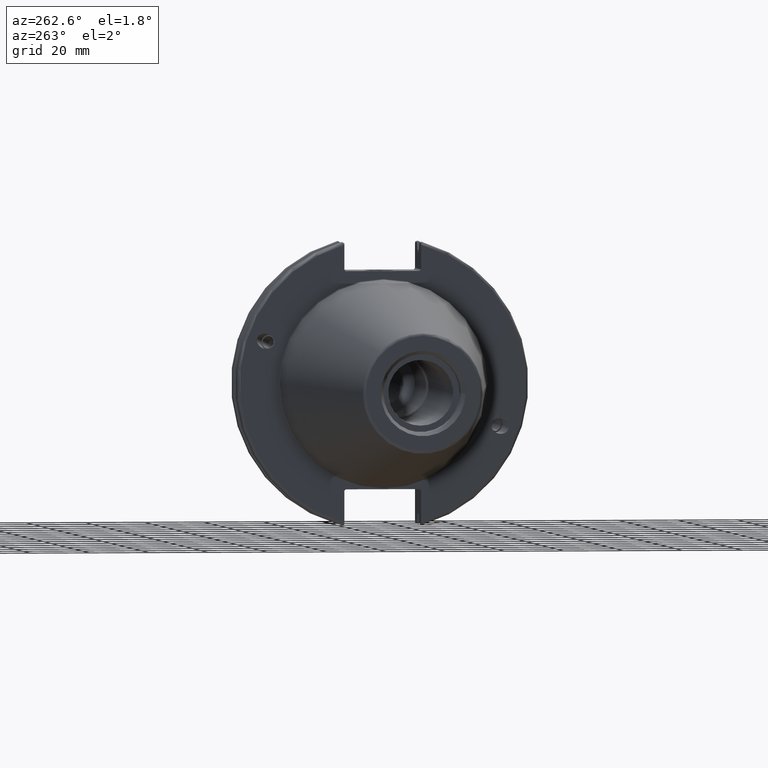
[diagram: clean part render]
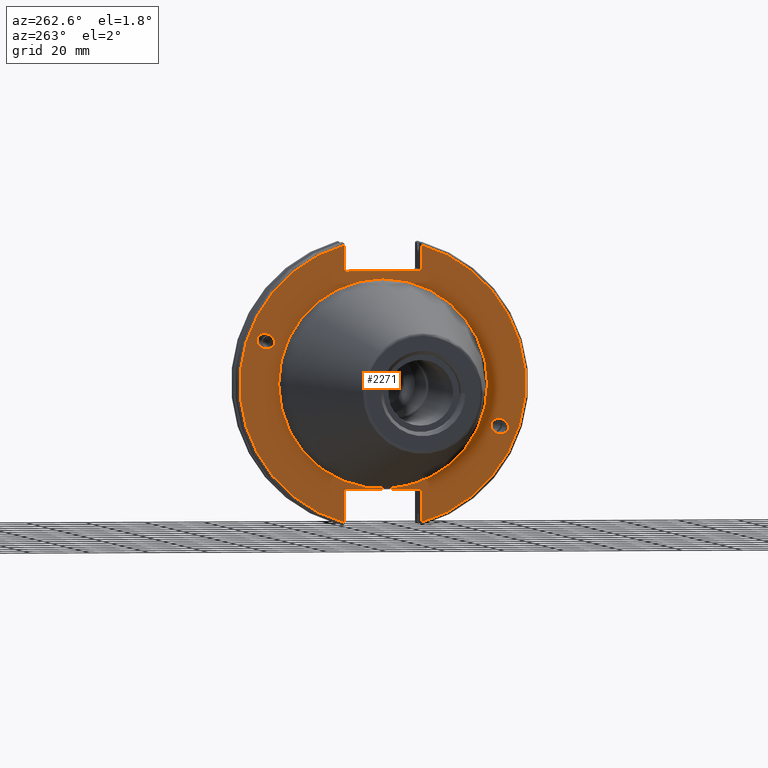
[diagram: same view with one face highlighted and labeled with its STEP entity id]
A machine part, auxiliary view. The second image highlights one B-rep face of the part: STEP entity #2271.
In plain terms, the highlighted planar face has unit normal (-1, 0, 0).
Its self-contained STEP definition (entity closure, byte-faithful):
#31=ELLIPSE('',#2514,3.05193647190364,2.5);
#32=ELLIPSE('',#2553,3.05193647190364,2.5);
#44=PLANE('',#2566);
#104=FACE_BOUND('',#362,.T.);
#105=FACE_BOUND('',#363,.T.);
#106=FACE_BOUND('',#364,.T.);
#236=FACE_OUTER_BOUND('',#361,.T.);
#361=EDGE_LOOP('',(#1895,#1896,#1897,#1898,#1899,#1900,#1901,#1902,#1903,
#1904,#1905,#1906));
#362=EDGE_LOOP('',(#1907));
#363=EDGE_LOOP('',(#1908));
#364=EDGE_LOOP('',(#1909,#1910));
#462=LINE('',#4252,#569);
#463=LINE('',#4254,#570);
#464=LINE('',#4256,#571);
#465=LINE('',#4258,#572);
#466=LINE('',#4260,#573);
#467=LINE('',#4264,#574);
#468=LINE('',#4266,#575);
#469=LINE('',#4268,#576);
#470=LINE('',#4270,#577);
#471=LINE('',#4271,#578);
#569=VECTOR('',#3161,10.);
#570=VECTOR('',#3162,10.);
#571=VECTOR('',#3163,10.);
#572=VECTOR('',#3164,10.);
#573=VECTOR('',#3165,10.);
#574=VECTOR('',#3168,10.);
#575=VECTOR('',#3169,10.);
#576=VECTOR('',#3170,10.);
#577=VECTOR('',#3171,10.);
#578=VECTOR('',#3172,10.);
#784=CIRCLE('',#2562,35.125);
#785=CIRCLE('',#2563,35.125);
#788=CIRCLE('',#2567,48.2125);
#789=CIRCLE('',#2568,48.2125);
#959=VERTEX_POINT('',#3953);
#1002=VERTEX_POINT('',#4222);
#1008=VERTEX_POINT('',#4239);
#1009=VERTEX_POINT('',#4241);
#1011=VERTEX_POINT('',#4248);
#1012=VERTEX_POINT('',#4249);
#1013=VERTEX_POINT('',#4251);
#1014=VERTEX_POINT('',#4253);
#1015=VERTEX_POINT('',#4255);
#1016=VERTEX_POINT('',#4257);
#1017=VERTEX_POINT('',#4259);
#1018=VERTEX_POINT('',#4261);
#1019=VERTEX_POINT('',#4263);
#1020=VERTEX_POINT('',#4265);
#1021=VERTEX_POINT('',#4267);
#1022=VERTEX_POINT('',#4269);
#1261=EDGE_CURVE('',#959,#959,#31,.T.);
#1317=EDGE_CURVE('',#1002,#1002,#32,.T.);
#1325=EDGE_CURVE('',#1008,#1009,#784,.T.);
#1326=EDGE_CURVE('',#1009,#1008,#785,.T.);
#1329=EDGE_CURVE('',#1011,#1012,#788,.T.);
#1330=EDGE_CURVE('',#1011,#1013,#462,.T.);
#1331=EDGE_CURVE('',#1014,#1013,#463,.T.);
#1332=EDGE_CURVE('',#1014,#1015,#464,.T.);
#1333=EDGE_CURVE('',#1016,#1015,#465,.T.);
#1334=EDGE_CURVE('',#1016,#1017,#466,.T.);
#1335=EDGE_CURVE('',#1018,#1017,#789,.T.);
#1336=EDGE_CURVE('',#1018,#1019,#467,.T.);
#1337=EDGE_CURVE('',#1020,#1019,#468,.T.);
#1338=EDGE_CURVE('',#1020,#1021,#469,.T.);
#1339=EDGE_CURVE('',#1022,#1021,#470,.T.);
#1340=EDGE_CURVE('',#1022,#1012,#471,.T.);
#1895=ORIENTED_EDGE('',*,*,#1329,.F.);
#1896=ORIENTED_EDGE('',*,*,#1330,.T.);
#1897=ORIENTED_EDGE('',*,*,#1331,.F.);
#1898=ORIENTED_EDGE('',*,*,#1332,.T.);
#1899=ORIENTED_EDGE('',*,*,#1333,.F.);
#1900=ORIENTED_EDGE('',*,*,#1334,.T.);
#1901=ORIENTED_EDGE('',*,*,#1335,.F.);
#1902=ORIENTED_EDGE('',*,*,#1336,.T.);
#1903=ORIENTED_EDGE('',*,*,#1337,.F.);
#1904=ORIENTED_EDGE('',*,*,#1338,.T.);
#1905=ORIENTED_EDGE('',*,*,#1339,.F.);
#1906=ORIENTED_EDGE('',*,*,#1340,.T.);
#1907=ORIENTED_EDGE('',*,*,#1261,.T.);
#1908=ORIENTED_EDGE('',*,*,#1317,.T.);
#1909=ORIENTED_EDGE('',*,*,#1326,.F.);
#1910=ORIENTED_EDGE('',*,*,#1325,.F.);
#2271=ADVANCED_FACE('',(#236,#104,#105,#106),#44,.T.);
#2514=AXIS2_PLACEMENT_3D('',#3955,#3035,#3036);
#2553=AXIS2_PLACEMENT_3D('',#4224,#3129,#3130);
#2562=AXIS2_PLACEMENT_3D('',#4242,#3149,#3150);
#2563=AXIS2_PLACEMENT_3D('',#4243,#3151,#3152);
#2566=AXIS2_PLACEMENT_3D('',#4247,#3157,#3158);
#2567=AXIS2_PLACEMENT_3D('',#4250,#3159,#3160);
#2568=AXIS2_PLACEMENT_3D('',#4262,#3166,#3167);
#3035=DIRECTION('center_axis',(1.,0.,0.));
#3036=DIRECTION('ref_axis',(0.,-0.939692620785907,-0.342020143325671));
#3129=DIRECTION('center_axis',(1.,0.,0.));
#3130=DIRECTION('ref_axis',(0.,0.939692620785907,0.342020143325672));
#3149=DIRECTION('center_axis',(-1.,0.,0.));
#3150=DIRECTION('ref_axis',(0.,-1.,1.83697019872103E-16));
#3151=DIRECTION('center_axis',(-1.,0.,0.));
#3152=DIRECTION('ref_axis',(0.,-1.,1.83697019872103E-16));
#3157=DIRECTION('center_axis',(-1.,0.,0.));
#3158=DIRECTION('ref_axis',(0.,0.,1.));
#3159=DIRECTION('center_axis',(1.,0.,0.));
#3160=DIRECTION('ref_axis',(0.,-1.,1.60812264967664E-16));
#3161=DIRECTION('',(0.,0.,-1.));
#3162=DIRECTION('',(0.,-0.707106781186549,0.707106781186546));
#3163=DIRECTION('',(0.,1.,0.));
#3164=DIRECTION('',(0.,-0.707106781186549,-0.707106781186546));
#3165=DIRECTION('',(0.,0.,1.));
#3166=DIRECTION('center_axis',(1.,0.,0.));
#3167=DIRECTION('ref_axis',(0.,1.,-6.12323399573677E-17));
#3168=DIRECTION('',(0.,0.,1.));
#3169=DIRECTION('',(0.,0.707106781186549,-0.707106781186546));
#3170=DIRECTION('',(0.,-1.,0.));
#3171=DIRECTION('',(0.,0.707106781186549,0.707106781186546));
#3172=DIRECTION('',(0.,0.,-1.));
#3953=CARTESIAN_POINT('',(3.175,-36.5992078912529,-13.3210222701368));
#3955=CARTESIAN_POINT('Origin',(3.175,-39.4670900730082,-14.3648460196781));
#4222=CARTESIAN_POINT('',(3.175,36.5992078912529,13.3210222701368));
#4224=CARTESIAN_POINT('Origin',(3.175,39.4670900730082,14.3648460196781));
#4239=CARTESIAN_POINT('',(3.175,-4.30157188200508E-15,35.125));
#4241=CARTESIAN_POINT('',(3.175,35.125,-1.07539297050127E-14));
#4242=CARTESIAN_POINT('Origin',(3.175,0.,0.));
#4243=CARTESIAN_POINT('Origin',(3.175,0.,0.));
#4247=CARTESIAN_POINT('Origin',(3.175,49.2125,0.));
#4248=CARTESIAN_POINT('',(3.175,-12.95,46.4407434937254));
#4249=CARTESIAN_POINT('',(3.175,-12.95,-46.4407434937254));
#4250=CARTESIAN_POINT('Origin',(3.175,0.,0.));
#4251=CARTESIAN_POINT('',(3.175,-12.95,38.219));
#4252=CARTESIAN_POINT('',(3.175,-12.95,18.8595));
#4253=CARTESIAN_POINT('',(3.175,-12.45,37.719));
#4254=CARTESIAN_POINT('',(3.175,12.2703750000001,12.998625));
#4255=CARTESIAN_POINT('',(3.175,12.45,37.719));
#4256=CARTESIAN_POINT('',(3.175,24.60625,37.719));
#4257=CARTESIAN_POINT('',(3.175,12.95,38.219));
#4258=CARTESIAN_POINT('',(3.175,12.335875,37.604875));
#4259=CARTESIAN_POINT('',(3.175,12.95,46.4407434937254));
#4260=CARTESIAN_POINT('',(3.175,12.95,18.8595));
#4261=CARTESIAN_POINT('',(3.175,12.95,-46.4407434937254));
#4262=CARTESIAN_POINT('Origin',(3.175,0.,0.));
#4263=CARTESIAN_POINT('',(3.175,12.95,-35.806));
#4264=CARTESIAN_POINT('',(3.175,12.95,-17.653));
#4265=CARTESIAN_POINT('',(3.175,12.45,-35.306));
#4266=CARTESIAN_POINT('',(3.175,12.939125,-35.795125));
#4267=CARTESIAN_POINT('',(3.175,-12.45,-35.306));
#4268=CARTESIAN_POINT('',(3.175,24.60625,-35.306));
#4269=CARTESIAN_POINT('',(3.175,-12.95,-35.806));
#4270=CARTESIAN_POINT('',(3.175,11.6671250000001,-11.188875));
#4271=CARTESIAN_POINT('',(3.175,-12.95,-17.653));